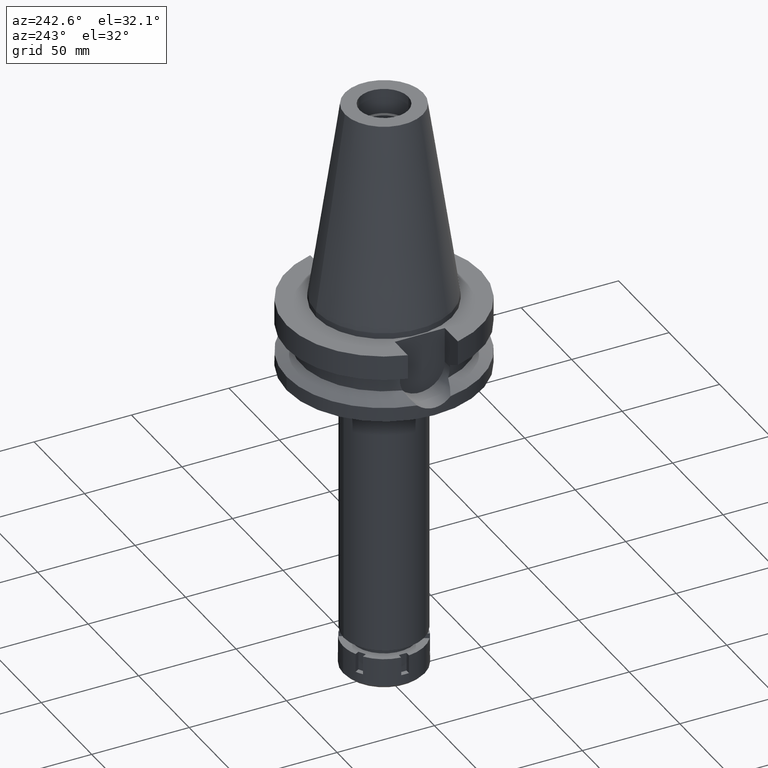
[diagram: clean part render]
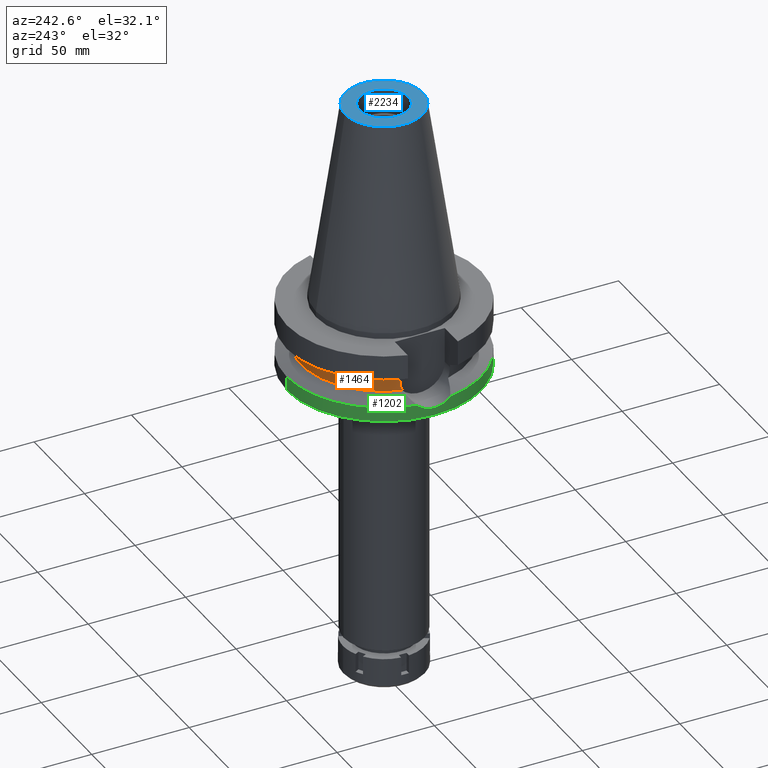
[diagram: same view with three faces highlighted in distinct colors, each labeled with its STEP entity id]
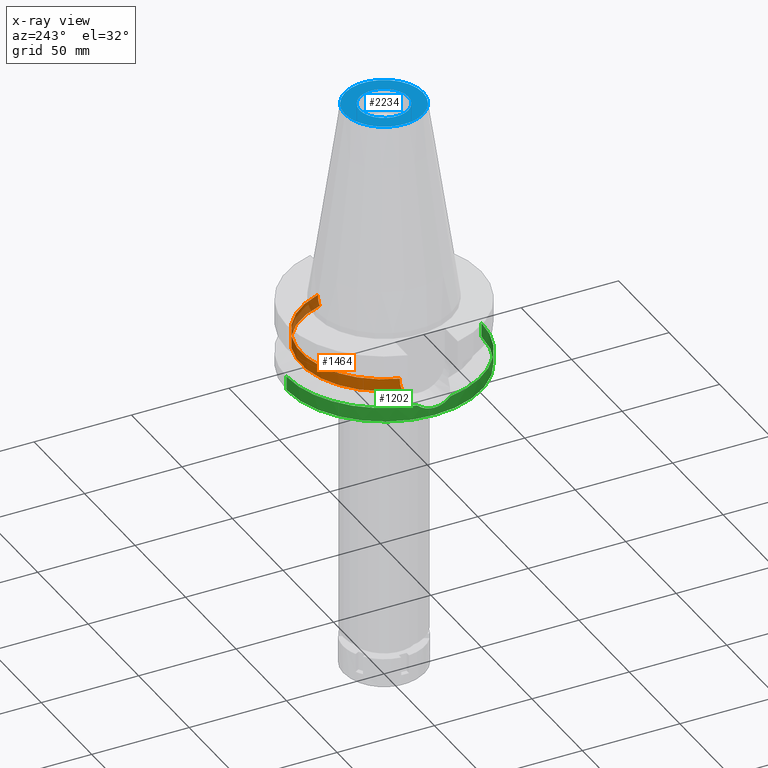
[diagram: x-ray of the same camera — body ghosted, the three highlighted faces saturated]
A machine part, auxiliary view with three faces highlighted in distinct colors.
The next image is the same camera in x-ray (body ghosted, the three faces saturated) — at least one of them is partly hidden behind the body in this view.
Their STEP definitions:

[orange] entity #1464 — the highlighted cylindrical surface (partial cylindrical patch) has radius 42.5 mm, axis along (0, 0, -1).
#124 = DIRECTION ( 'NONE',  ( 0.0000000000000000000, 0.0000000000000000000, -1.000000000000000000 ) ) ;
#156 = CARTESIAN_POINT ( 'NONE',  ( 40.51083188481999997, 12.84999999999999964, -21.14999999999999858 ) ) ;
#179 = VECTOR ( 'NONE', #3534, 999.9999999999998863 ) ;
#217 = CARTESIAN_POINT ( 'NONE',  ( 0.0000000000000000000, 0.0000000000000000000, -26.40718074535000426 ) ) ;
#326 = ORIENTED_EDGE ( 'NONE', *, *, #2248, .F. ) ;
#353 = VECTOR ( 'NONE', #3282, 1000.000000000000227 ) ;
#420 = CARTESIAN_POINT ( 'NONE',  ( 0.0000000000000000000, 2.651237855473999832E-14, 116.4899999999999949 ) ) ;
#495 = VERTEX_POINT ( 'NONE', #2665 ) ;
#549 = ORIENTED_EDGE ( 'NONE', *, *, #2020, .F. ) ;
#570 = CARTESIAN_POINT ( 'NONE',  ( 40.68244012169061108, 12.29668327074609557, -24.88704817341103848 ) ) ;
#621 = VERTEX_POINT ( 'NONE', #3516 ) ;
#655 = CARTESIAN_POINT ( 'NONE',  ( -40.85052569294000335, 11.72538061688000077, -26.40718074535000426 ) ) ;
#694 = CARTESIAN_POINT ( 'NONE',  ( -40.73816962964881583, 12.11682243018211302, -25.53412644635514539 ) ) ;
#812 = CARTESIAN_POINT ( 'NONE',  ( -40.58662774857591415, 12.60877356363315727, -23.62931612666511683 ) ) ;
#822 = CARTESIAN_POINT ( 'NONE',  ( 40.60092153270026927, 12.56264230965691020, -23.85246783902318413 ) ) ;
#900 = CARTESIAN_POINT ( 'NONE',  ( 40.51083188481999287, 12.84999999999999964, -22.03306420386933695 ) ) ;
#908 = ORIENTED_EDGE ( 'NONE', *, *, #3228, .F. ) ;
#1008 = VERTEX_POINT ( 'NONE', #1643 ) ;
#1043 = EDGE_CURVE ( 'NONE', #495, #1008, #3326, .T. ) ;
#1096 = CARTESIAN_POINT ( 'NONE',  ( -40.51818735908894809, 12.82722126770212157, -22.03688626290332309 ) ) ;
#1108 = CARTESIAN_POINT ( 'NONE',  ( -40.57496242610246640, 12.64633064307898636, -23.43373649620420451 ) ) ;
#1114 = CARTESIAN_POINT ( 'NONE',  ( 40.61156285954857026, 12.52823285237359130, -24.00849237159464167 ) ) ;
#1227 = CARTESIAN_POINT ( 'NONE',  ( -40.65436025735130698, 12.39001373507905868, -24.66363152923814894 ) ) ;
#1270 = CARTESIAN_POINT ( 'NONE',  ( -40.59544857123437822, 12.58031941217381799, -23.76894563305584640 ) ) ;
#1288 = CARTESIAN_POINT ( 'NONE',  ( -40.59737061725674323, 12.57411364518324604, -23.79856269427695992 ) ) ;
#1367 = CARTESIAN_POINT ( 'NONE',  ( -40.54944812473203086, 12.72805978472145938, -22.93052269426958034 ) ) ;
#1429 = CARTESIAN_POINT ( 'NONE',  ( 40.79434480643646310, 11.92111146967505952, -25.97063141241893547 ) ) ;
#1464 = ADVANCED_FACE ( 'NONE', ( #1866 ), #1568, .T. ) ;
#1503 = CARTESIAN_POINT ( 'NONE',  ( -40.51083297141000372, 12.84999657442999954, -19.99284554354000321 ) ) ;
#1535 = LINE ( 'NONE', #1503, #179 ) ;
#1568 = CYLINDRICAL_SURFACE ( 'NONE', #3499, 42.50000000000000000 ) ;
#1593 = VERTEX_POINT ( 'NONE', #1936 ) ;
#1643 = CARTESIAN_POINT ( 'NONE',  ( -40.85052569294000335, 11.72538061688000077, -26.40718074535000426 ) ) ;
#1692 = CARTESIAN_POINT ( 'NONE',  ( 40.66327078203668322, 12.35978912949376252, -24.67232732615307000 ) ) ;
#1708 = CARTESIAN_POINT ( 'NONE',  ( 40.60613069944914599, 12.54580339937320943, -23.92957563982541913 ) ) ;
#1723 = CARTESIAN_POINT ( 'NONE',  ( 40.51083188481999997, 12.84999999999999964, -21.14999999999999858 ) ) ;
#1743 = CARTESIAN_POINT ( 'NONE',  ( 40.60256501628037284, 12.55733133482484476, -23.87702281264044402 ) ) ;
#1866 = FACE_OUTER_BOUND ( 'NONE', #2573, .T. ) ;
#1886 = DIRECTION ( 'NONE',  ( 0.0000000000000000000, 1.000000000000000000, 0.0000000000000000000 ) ) ;
#1936 = CARTESIAN_POINT ( 'NONE',  ( -40.51083188481999997, 12.84999999999999964, -21.14999999999999858 ) ) ;
#1951 = ORIENTED_EDGE ( 'NONE', *, *, #2281, .F. ) ;
#1953 = CARTESIAN_POINT ( 'NONE',  ( -40.59188576338534915, 12.59181613885846929, -23.71309950380453202 ) ) ;
#2008 = CARTESIAN_POINT ( 'NONE',  ( 40.62482334720413490, 12.48526811858512353, -24.19322874753378727 ) ) ;
#2020 = EDGE_CURVE ( 'NONE', #495, #3577, #3109, .T. ) ;
#2039 = LINE ( 'NONE', #156, #353 ) ;
#2139 = DIRECTION ( 'NONE',  ( 0.0000000000000000000, 0.0000000000000000000, 1.000000000000000000 ) ) ;
#2248 = EDGE_CURVE ( 'NONE', #2477, #1593, #1535, .T. ) ;
#2275 = CARTESIAN_POINT ( 'NONE',  ( 40.54024891269926911, 12.75863239535543059, -22.93144942354764737 ) ) ;
#2281 = EDGE_CURVE ( 'NONE', #3577, #621, #2039, .T. ) ;
#2369 = AXIS2_PLACEMENT_3D ( 'NONE', #217, #2139, #1886 ) ;
#2390 = DIRECTION ( 'NONE',  ( -0.9531960443486575674, 0.3023529411764863672, 0.0000000000000000000 ) ) ;
#2473 = DIRECTION ( 'NONE',  ( 0.0000000000000000000, 0.0000000000000000000, -1.000000000000000000 ) ) ;
#2477 = VERTEX_POINT ( 'NONE', #2774 ) ;
#2496 = CARTESIAN_POINT ( 'NONE',  ( -40.56599794183718188, 12.67508828619823724, -23.26599945041199646 ) ) ;
#2573 = EDGE_LOOP ( 'NONE', ( #326, #3412, #1951, #549, #3525, #908 ) ) ;
#2609 = CARTESIAN_POINT ( 'NONE',  ( -40.54025378189581374, 12.75731467218758297, -22.70686882179157351 ) ) ;
#2665 = CARTESIAN_POINT ( 'NONE',  ( 40.85052569294000335, 11.72538061688000077, -26.40718074535000426 ) ) ;
#2750 = CARTESIAN_POINT ( 'NONE',  ( 40.51083188481999997, 12.84999999999999964, -21.14999999999999858 ) ) ;
#2774 = CARTESIAN_POINT ( 'NONE',  ( -40.51083188481999997, 12.84999999999999964, -19.99281925464999787 ) ) ;
#2836 = CARTESIAN_POINT ( 'NONE',  ( 40.85052569294000335, 11.72538061688000077, -26.40718074535000426 ) ) ;
#2840 = B_SPLINE_CURVE_WITH_KNOTS ( 'NONE', 3,
 ( #3629, #3367, #1096, #2609, #1367, #2496, #1108, #812, #1953, #1270, #1288, #1227, #694, #655 ),
 .UNSPECIFIED., .F., .F.,
 ( 4, 2, 2, 1, 1, 2, 2, 4 ),
 ( 0.0000000000000000000, 0.2500000000000047184, 0.3750000000000061617, 0.4375000000000069389, 0.4687500000000071054, 0.4843750000000073275, 0.5000000000000074385, 1.000000000000000000 ),
 .UNSPECIFIED. ) ;
#2841 = AXIS2_PLACEMENT_3D ( 'NONE', #2953, #124, #2390 ) ;
#2953 = CARTESIAN_POINT ( 'NONE',  ( 0.0000000000000000000, 1.006319759053999930E-14, -19.99281925464999787 ) ) ;
#3088 = CIRCLE ( 'NONE', #2841, 42.50000000000002132 ) ;
#3109 = B_SPLINE_CURVE_WITH_KNOTS ( 'NONE', 3,
 ( #2836, #1429, #3116, #570, #1692, #3691, #2008, #1114, #1708, #1743, #822, #2275, #900, #1723 ),
 .UNSPECIFIED., .F., .F.,
 ( 4, 2, 2, 1, 1, 2, 2, 4 ),
 ( 0.0000000000000000000, 0.2500000000000013323, 0.3750000000000030531, 0.4375000000000029976, 0.4687500000000029421, 0.4843750000000029421, 0.5000000000000028866, 1.000000000000000000 ),
 .UNSPECIFIED. ) ;
#3116 = CARTESIAN_POINT ( 'NONE',  ( 40.74530080281117961, 12.08736009434965553, -25.53452049776151611 ) ) ;
#3228 = EDGE_CURVE ( 'NONE', #1593, #1008, #2840, .T. ) ;
#3282 = DIRECTION ( 'NONE',  ( 9.395523002366738675E-07, -2.962029390682913821E-06, 0.9999999999951717511 ) ) ;
#3294 = DIRECTION ( 'NONE',  ( 0.0000000000000000000, -1.000000000000000000, 0.0000000000000000000 ) ) ;
#3326 = CIRCLE ( 'NONE', #2369, 42.50000000000000000 ) ;
#3356 = EDGE_CURVE ( 'NONE', #2477, #621, #3088, .T. ) ;
#3367 = CARTESIAN_POINT ( 'NONE',  ( -40.51083188481999997, 12.85000000000001563, -21.59155125953240528 ) ) ;
#3412 = ORIENTED_EDGE ( 'NONE', *, *, #3356, .T. ) ;
#3499 = AXIS2_PLACEMENT_3D ( 'NONE', #420, #2473, #3294 ) ;
#3516 = CARTESIAN_POINT ( 'NONE',  ( 40.51083297203000200, 12.84999657246999938, -19.99284555851999912 ) ) ;
#3525 = ORIENTED_EDGE ( 'NONE', *, *, #1043, .T. ) ;
#3534 = DIRECTION ( 'NONE',  ( 9.390170942255792672E-07, 2.960342106127936188E-06, -0.9999999999951774132 ) ) ;
#3577 = VERTEX_POINT ( 'NONE', #2750 ) ;
#3629 = CARTESIAN_POINT ( 'NONE',  ( -40.51083188481999997, 12.84999999999999964, -21.14999999999999858 ) ) ;
#3691 = CARTESIAN_POINT ( 'NONE',  ( 40.63719310363511283, 12.44501386261014453, -24.35254574346263823 ) ) ;

[blue] entity #2234 — the highlighted planar face has unit normal (0, 0, -1).
#25 = DIRECTION ( 'NONE',  ( 0.0000000000000000000, 0.0000000000000000000, -1.000000000000000000 ) ) ;
#115 = ORIENTED_EDGE ( 'NONE', *, *, #564, .F. ) ;
#125 = EDGE_CURVE ( 'NONE', #1976, #2641, #234, .T. ) ;
#234 = CIRCLE ( 'NONE', #2312, 20.07942971896000017 ) ;
#283 = AXIS2_PLACEMENT_3D ( 'NONE', #2461, #3335, #3251 ) ;
#393 = CARTESIAN_POINT ( 'NONE',  ( 0.0000000000000000000, -12.50000000000000000, 101.7999999999999972 ) ) ;
#564 = EDGE_CURVE ( 'NONE', #2641, #1976, #1144, .T. ) ;
#647 = VERTEX_POINT ( 'NONE', #1384 ) ;
#802 = CARTESIAN_POINT ( 'NONE',  ( 0.0000000000000000000, 20.07942971896000017, 101.7999999999999972 ) ) ;
#938 = CARTESIAN_POINT ( 'NONE',  ( 0.0000000000000000000, 1.847992019912999597E-14, 101.7999999999999972 ) ) ;
#952 = DIRECTION ( 'NONE',  ( 0.0000000000000000000, -1.000000000000000000, 0.0000000000000000000 ) ) ;
#1086 = AXIS2_PLACEMENT_3D ( 'NONE', #3022, #3544, #2111 ) ;
#1097 = EDGE_CURVE ( 'NONE', #647, #3368, #2010, .T. ) ;
#1144 = CIRCLE ( 'NONE', #2562, 20.07942971896000017 ) ;
#1384 = CARTESIAN_POINT ( 'NONE',  ( 0.0000000000000000000, 12.50000000000000000, 101.7999999999999972 ) ) ;
#1510 = EDGE_CURVE ( 'NONE', #3368, #647, #1729, .T. ) ;
#1660 = ORIENTED_EDGE ( 'NONE', *, *, #1510, .F. ) ;
#1729 = CIRCLE ( 'NONE', #1086, 12.50000000000000000 ) ;
#1794 = AXIS2_PLACEMENT_3D ( 'NONE', #2100, #2054, #952 ) ;
#1816 = DIRECTION ( 'NONE',  ( 0.0000000000000000000, 1.000000000000000000, 0.0000000000000000000 ) ) ;
#1976 = VERTEX_POINT ( 'NONE', #3563 ) ;
#2010 = CIRCLE ( 'NONE', #283, 12.50000000000000000 ) ;
#2054 = DIRECTION ( 'NONE',  ( 0.0000000000000000000, 0.0000000000000000000, -1.000000000000000000 ) ) ;
#2100 = CARTESIAN_POINT ( 'NONE',  ( 0.0000000000000000000, 2.471337240678999545E-14, 101.7999999999999972 ) ) ;
#2111 = DIRECTION ( 'NONE',  ( 0.0000000000000000000, -1.000000000000000000, 0.0000000000000000000 ) ) ;
#2161 = EDGE_LOOP ( 'NONE', ( #3536, #1660 ) ) ;
#2234 = ADVANCED_FACE ( 'NONE', ( #2358, #2382 ), #3495, .F. ) ;
#2312 = AXIS2_PLACEMENT_3D ( 'NONE', #938, #25, #2646 ) ;
#2358 = FACE_OUTER_BOUND ( 'NONE', #2556, .T. ) ;
#2382 = FACE_BOUND ( 'NONE', #2161, .T. ) ;
#2461 = CARTESIAN_POINT ( 'NONE',  ( 0.0000000000000000000, 2.651237855473999832E-14, 101.7999999999999972 ) ) ;
#2556 = EDGE_LOOP ( 'NONE', ( #115, #3236 ) ) ;
#2562 = AXIS2_PLACEMENT_3D ( 'NONE', #2952, #2707, #1816 ) ;
#2641 = VERTEX_POINT ( 'NONE', #802 ) ;
#2646 = DIRECTION ( 'NONE',  ( 0.0000000000000000000, -1.000000000000000000, 0.0000000000000000000 ) ) ;
#2707 = DIRECTION ( 'NONE',  ( 0.0000000000000000000, 0.0000000000000000000, -1.000000000000000000 ) ) ;
#2952 = CARTESIAN_POINT ( 'NONE',  ( 0.0000000000000000000, 1.847992019912999597E-14, 101.7999999999999972 ) ) ;
#3022 = CARTESIAN_POINT ( 'NONE',  ( 0.0000000000000000000, 2.651237855473999832E-14, 101.7999999999999972 ) ) ;
#3236 = ORIENTED_EDGE ( 'NONE', *, *, #125, .F. ) ;
#3251 = DIRECTION ( 'NONE',  ( 0.0000000000000000000, 1.000000000000000000, 0.0000000000000000000 ) ) ;
#3335 = DIRECTION ( 'NONE',  ( 0.0000000000000000000, 0.0000000000000000000, 1.000000000000000000 ) ) ;
#3368 = VERTEX_POINT ( 'NONE', #393 ) ;
#3495 = PLANE ( 'NONE',  #1794 ) ;
#3536 = ORIENTED_EDGE ( 'NONE', *, *, #1097, .F. ) ;
#3544 = DIRECTION ( 'NONE',  ( 0.0000000000000000000, 0.0000000000000000000, 1.000000000000000000 ) ) ;
#3563 = CARTESIAN_POINT ( 'NONE',  ( 0.0000000000000000000, -20.07942971896000017, 101.7999999999999972 ) ) ;

[green] entity #1202 — the highlighted cylindrical surface (partial cylindrical patch) has radius 50 mm, axis along (0, 0, -1).
#21 = ORIENTED_EDGE ( 'NONE', *, *, #2221, .T. ) ;
#42 = DIRECTION ( 'NONE',  ( 0.0000000000000000000, 0.0000000000000000000, -1.000000000000000000 ) ) ;
#87 = EDGE_LOOP ( 'NONE', ( #2202, #21, #2739, #2183, #1456, #2354 ) ) ;
#95 = CARTESIAN_POINT ( 'NONE',  ( -49.47566580412834725, 7.222569676286056506, -31.77964915400913881 ) ) ;
#142 = CARTESIAN_POINT ( 'NONE',  ( -49.84644755714927555, -3.921701316595554765, -33.38981237008672309 ) ) ;
#165 = CARTESIAN_POINT ( 'NONE',  ( -49.99978007004854419, 0.1277363651292394153, -33.99951339606808887 ) ) ;
#192 = CARTESIAN_POINT ( 'NONE',  ( -49.79360975992647553, -4.538122689800699661, -33.17198411705533090 ) ) ;
#226 = CARTESIAN_POINT ( 'NONE',  ( -49.56395370295711444, -6.589055712391462372, -32.18213532685411593 ) ) ;
#240 = AXIS2_PLACEMENT_3D ( 'NONE', #3178, #42, #1756 ) ;
#303 = CARTESIAN_POINT ( 'NONE',  ( -49.64898610876950613, 5.924049219961846191, -32.55967030391435202 ) ) ;
#306 = FACE_OUTER_BOUND ( 'NONE', #87, .T. ) ;
#356 = CARTESIAN_POINT ( 'NONE',  ( 0.0000000000000000000, 50.00000000000000000, -30.73730776426999967 ) ) ;
#368 = CARTESIAN_POINT ( 'NONE',  ( -49.26250064874000145, 8.556052234130000045, -30.73730776426999967 ) ) ;
#384 = DIRECTION ( 'NONE',  ( 0.0000000000000000000, 2.152361642122000014E-14, -1.000000000000000000 ) ) ;
#444 = CARTESIAN_POINT ( 'NONE',  ( -49.78714585122636294, 4.608515934789558344, -33.14520686596515731 ) ) ;
#471 = CARTESIAN_POINT ( 'NONE',  ( -49.79024291478474140, -4.574903425303972426, -33.15803416392318326 ) ) ;
#476 = VECTOR ( 'NONE', #384, 1000.000000000000000 ) ;
#488 = VERTEX_POINT ( 'NONE', #3521 ) ;
#489 = CARTESIAN_POINT ( 'NONE',  ( -49.75837799903966641, -4.920711292714374352, -33.02594009606804093 ) ) ;
#506 = CARTESIAN_POINT ( 'NONE',  ( -49.64367505671710035, -5.960659303902090755, -32.53565567123143154 ) ) ;
#510 = DIRECTION ( 'NONE',  ( 0.0000000000000000000, 0.0000000000000000000, -1.000000000000000000 ) ) ;
#524 = CARTESIAN_POINT ( 'NONE',  ( -49.55878331874021825, -6.627792136031090742, -32.15886750765722013 ) ) ;
#622 = CARTESIAN_POINT ( 'NONE',  ( 0.0000000000000000000, 50.00000000000000000, -30.73730776426999967 ) ) ;
#668 = CARTESIAN_POINT ( 'NONE',  ( -49.72680802972317338, 5.221633248586280196, -32.89276324358826287 ) ) ;
#728 = CARTESIAN_POINT ( 'NONE',  ( -49.75319208404522442, 4.961948302495471808, -33.00370953068234314 ) ) ;
#766 = CARTESIAN_POINT ( 'NONE',  ( -49.79683695212170846, -4.502663508584212160, -33.18534950409117812 ) ) ;
#805 = CARTESIAN_POINT ( 'NONE',  ( -49.66436399988585038, -5.785502173081689570, -32.62553262726319758 ) ) ;
#810 = VERTEX_POINT ( 'NONE', #3595 ) ;
#861 = DIRECTION ( 'NONE',  ( 0.0000000000000000000, -1.000000000000000000, 0.0000000000000000000 ) ) ;
#887 = VERTEX_POINT ( 'NONE', #1548 ) ;
#927 = DIRECTION ( 'NONE',  ( 0.0000000000000000000, 0.0000000000000000000, 1.000000000000000000 ) ) ;
#953 = CARTESIAN_POINT ( 'NONE',  ( -49.60527657794600742, 6.280734339048350989, -32.36827992160078793 ) ) ;
#1024 = CARTESIAN_POINT ( 'NONE',  ( -49.55655823010589245, -6.644396915698249195, -32.14884227876249412 ) ) ;
#1025 = VECTOR ( 'NONE', #3015, 1000.000000000000000 ) ;
#1044 = CARTESIAN_POINT ( 'NONE',  ( -49.57420851433771958, -6.511617493453977445, -32.22817501005160779 ) ) ;
#1061 = CARTESIAN_POINT ( 'NONE',  ( -49.79144986254233629, -4.561756691914538031, -33.16303606679792892 ) ) ;
#1083 = CARTESIAN_POINT ( 'NONE',  ( 0.0000000000000000000, -50.00000000000000000, -30.73730776426999967 ) ) ;
#1095 = DIRECTION ( 'NONE',  ( 0.0000000000000000000, -1.000000000000000000, 0.0000000000000000000 ) ) ;
#1101 = CARTESIAN_POINT ( 'NONE',  ( -49.99991418525429054, 0.01116271475904011441, -34.00001628486788974 ) ) ;
#1202 = ADVANCED_FACE ( 'NONE', ( #306 ), #3366, .T. ) ;
#1204 = AXIS2_PLACEMENT_3D ( 'NONE', #2636, #927, #1236 ) ;
#1208 = LINE ( 'NONE', #622, #476 ) ;
#1236 = DIRECTION ( 'NONE',  ( 0.0000000000000000000, 1.000000000000000000, 0.0000000000000000000 ) ) ;
#1237 = CARTESIAN_POINT ( 'NONE',  ( -49.54911688011213755, 6.699663358709522676, -32.11529720899933693 ) ) ;
#1282 = CARTESIAN_POINT ( 'NONE',  ( -49.37891072635320455, 7.861784141442475615, -31.32216870207415482 ) ) ;
#1325 = CARTESIAN_POINT ( 'NONE',  ( -49.99934626388451164, -0.7783924092420801966, -33.99780972340943919 ) ) ;
#1326 = CIRCLE ( 'NONE', #1204, 50.00000000000000000 ) ;
#1343 = LINE ( 'NONE', #1083, #1025 ) ;
#1378 = CARTESIAN_POINT ( 'NONE',  ( -49.38324903610464389, -7.860828859124546319, -31.35774967113219702 ) ) ;
#1391 = CARTESIAN_POINT ( 'NONE',  ( 0.0000000000000000000, -50.00000000000000000, -30.73730776426999967 ) ) ;
#1456 = ORIENTED_EDGE ( 'NONE', *, *, #1695, .T. ) ;
#1467 = CARTESIAN_POINT ( 'NONE',  ( 0.0000000000000000000, 50.00000000000000000, -38.00000000000000000 ) ) ;
#1536 = CARTESIAN_POINT ( 'NONE',  ( -49.55655204302928496, 6.644431293634283087, -32.14882155011449072 ) ) ;
#1548 = CARTESIAN_POINT ( 'NONE',  ( 0.0000000000000000000, -50.00000000000000000, -38.00000000000000000 ) ) ;
#1575 = CARTESIAN_POINT ( 'NONE',  ( -49.32372953367556079, 8.203519558850366877, -31.05192038108562258 ) ) ;
#1636 = CARTESIAN_POINT ( 'NONE',  ( -49.99918696134718488, 0.2913176030771943426, -33.99729381970415432 ) ) ;
#1640 = CARTESIAN_POINT ( 'NONE',  ( 0.0000000000000000000, 0.0000000000000000000, -30.73730776426999967 ) ) ;
#1695 = EDGE_CURVE ( 'NONE', #3151, #810, #2676, .T. ) ;
#1756 = DIRECTION ( 'NONE',  ( -0.9852500129747439050, 0.1711210446826074982, 0.0000000000000000000 ) ) ;
#1856 = CIRCLE ( 'NONE', #240, 50.00000000000000000 ) ;
#1871 = CARTESIAN_POINT ( 'NONE',  ( -49.78020860951708215, 4.683043310331449938, -33.11642240108568558 ) ) ;
#1876 = CARTESIAN_POINT ( 'NONE',  ( -49.97921345340199650, 1.472277931383667138, -33.92105547429478207 ) ) ;
#1931 = CARTESIAN_POINT ( 'NONE',  ( -49.80427849007743646, -4.419869523436141812, -33.21613890181311035 ) ) ;
#1943 = EDGE_CURVE ( 'NONE', #488, #810, #3676, .T. ) ;
#1944 = CARTESIAN_POINT ( 'NONE',  ( -49.99657010601527674, 0.6197521075796904588, -33.98745896368482278 ) ) ;
#1970 = EDGE_CURVE ( 'NONE', #3151, #887, #1343, .T. ) ;
#2148 = CARTESIAN_POINT ( 'NONE',  ( -49.79203021163985454, 4.555405786568073268, -33.16544452546231980 ) ) ;
#2154 = CARTESIAN_POINT ( 'NONE',  ( -49.86316841598083727, 3.774661687843875679, -33.45988861057551844 ) ) ;
#2171 = EDGE_CURVE ( 'NONE', #488, #3281, #1856, .T. ) ;
#2183 = ORIENTED_EDGE ( 'NONE', *, *, #1970, .F. ) ;
#2187 = CARTESIAN_POINT ( 'NONE',  ( -49.55415699598680845, -6.662282079197838769, -32.13801721396592370 ) ) ;
#2191 = EDGE_CURVE ( 'NONE', #3097, #887, #1326, .T. ) ;
#2202 = ORIENTED_EDGE ( 'NONE', *, *, #2171, .T. ) ;
#2208 = CARTESIAN_POINT ( 'NONE',  ( -49.99991299091728791, -0.01387171431984518706, -34.00001339701645975 ) ) ;
#2221 = EDGE_CURVE ( 'NONE', #3281, #3097, #1208, .T. ) ;
#2227 = CARTESIAN_POINT ( 'NONE',  ( -49.55507279108647367, -6.655467508179840230, -32.14214692833006382 ) ) ;
#2340 = CARTESIAN_POINT ( 'NONE',  ( -49.50798016024979376, 6.996952391510430580, -31.92837050288540368 ) ) ;
#2354 = ORIENTED_EDGE ( 'NONE', *, *, #1943, .F. ) ;
#2454 = CARTESIAN_POINT ( 'NONE',  ( -49.98151994496689099, -1.536776126238692530, -33.93130987525846365 ) ) ;
#2469 = CARTESIAN_POINT ( 'NONE',  ( -49.90699458491120311, -3.063359792405750071, -33.63580153744437951 ) ) ;
#2483 = CARTESIAN_POINT ( 'NONE',  ( -49.48027691391539662, -7.211450077568779093, -31.80475317887415798 ) ) ;
#2506 = CARTESIAN_POINT ( 'NONE',  ( -49.26250064874000145, -8.556052234130000045, -30.73730776426999967 ) ) ;
#2613 = AXIS2_PLACEMENT_3D ( 'NONE', #1640, #510, #861 ) ;
#2636 = CARTESIAN_POINT ( 'NONE',  ( 0.0000000000000000000, 2.651237855473999832E-14, -38.00000000000000000 ) ) ;
#2676 = CIRCLE ( 'NONE', #2613, 50.00000000000000000 ) ;
#2700 = CARTESIAN_POINT ( 'NONE',  ( -49.45261097698290342, 7.378715928777639377, -31.67219524338559822 ) ) ;
#2725 = CARTESIAN_POINT ( 'NONE',  ( -49.72328725716208453, -5.263682545456594752, -32.87883983849709324 ) ) ;
#2739 = ORIENTED_EDGE ( 'NONE', *, *, #2191, .T. ) ;
#2749 = CARTESIAN_POINT ( 'NONE',  ( -49.91493021333103286, 3.003896466695834100, -33.66817669891921128 ) ) ;
#2762 = CARTESIAN_POINT ( 'NONE',  ( -49.86770969757604632, -3.635792842379909739, -33.47650553562700537 ) ) ;
#2777 = CARTESIAN_POINT ( 'NONE',  ( -49.96641267293669131, 1.854385219548399188, -33.87144511914894451 ) ) ;
#2793 = AXIS2_PLACEMENT_3D ( 'NONE', #3403, #3135, #1095 ) ;
#2863 = CARTESIAN_POINT ( 'NONE',  ( -49.55497938657792645, 6.656146421900556831, -32.14173509731739387 ) ) ;
#2946 = CARTESIAN_POINT ( 'NONE',  ( -49.52357036716130523, 6.886290592251893550, -31.99961560334141453 ) ) ;
#3011 = CARTESIAN_POINT ( 'NONE',  ( -49.79008146598524576, 4.576641034203925429, -33.15737214667728239 ) ) ;
#3015 = DIRECTION ( 'NONE',  ( 0.0000000000000000000, -2.250196262218999978E-14, -1.000000000000000000 ) ) ;
#3071 = CARTESIAN_POINT ( 'NONE',  ( -49.79288518047122380, 4.546060314979706973, -33.16898483582425428 ) ) ;
#3085 = CARTESIAN_POINT ( 'NONE',  ( -49.92886531844350628, -2.680927594085602994, -33.72320138161557423 ) ) ;
#3097 = VERTEX_POINT ( 'NONE', #1467 ) ;
#3135 = DIRECTION ( 'NONE',  ( 0.0000000000000000000, 0.0000000000000000000, -1.000000000000000000 ) ) ;
#3151 = VERTEX_POINT ( 'NONE', #1391 ) ;
#3178 = CARTESIAN_POINT ( 'NONE',  ( 0.0000000000000000000, 0.0000000000000000000, -30.73730776426999967 ) ) ;
#3220 = CARTESIAN_POINT ( 'NONE',  ( -49.70815231120920430, 5.396331756057992202, -32.81362775810764276 ) ) ;
#3281 = VERTEX_POINT ( 'NONE', #356 ) ;
#3283 = CARTESIAN_POINT ( 'NONE',  ( -49.76598423034402430, 4.832695555829157108, -33.05724367534212149 ) ) ;
#3288 = CARTESIAN_POINT ( 'NONE',  ( -49.61106985584903839, -6.224615897500662243, -32.39218330791851486 ) ) ;
#3323 = CARTESIAN_POINT ( 'NONE',  ( -49.99187456499498694, 0.9032426761133953708, -33.96962919614824017 ) ) ;
#3366 = CYLINDRICAL_SURFACE ( 'NONE', #2793, 50.00000000000000000 ) ;
#3403 = CARTESIAN_POINT ( 'NONE',  ( 0.0000000000000000000, 2.651237855473999832E-14, 116.4899999999999949 ) ) ;
#3475 = CARTESIAN_POINT ( 'NONE',  ( -49.54076674238040567, 6.761186822826256382, -32.07757331960704761 ) ) ;
#3496 = CARTESIAN_POINT ( 'NONE',  ( -49.55614273364938072, 6.647481783958479440, -32.14697738341399713 ) ) ;
#3521 = CARTESIAN_POINT ( 'NONE',  ( -49.26250064874000145, 8.556052234130000045, -30.73730776426999967 ) ) ;
#3557 = CARTESIAN_POINT ( 'NONE',  ( -49.55322993650862884, 6.669162168877617702, -32.13384980553950498 ) ) ;
#3586 = CARTESIAN_POINT ( 'NONE',  ( -49.59437430888625897, -6.356898427903768578, -32.31828320127225851 ) ) ;
#3595 = CARTESIAN_POINT ( 'NONE',  ( -49.26250064874000145, -8.556052234130000045, -30.73730776426999967 ) ) ;
#3601 = CARTESIAN_POINT ( 'NONE',  ( -49.81880725732280979, -4.254068733330427676, -33.27613423610508647 ) ) ;
#3617 = CARTESIAN_POINT ( 'NONE',  ( -49.99988097685672983, 0.05777274214644423367, -33.99989126171253417 ) ) ;
#3676 = B_SPLINE_CURVE_WITH_KNOTS ( 'NONE', 3,
 ( #368, #1575, #1282, #2700, #95, #2340, #2946, #3475, #1237, #3557, #2863, #3496, #1536, #953, #303, #3220, #668, #728, #3283, #1871, #444, #3011, #2148, #3071, #2154, #2749, #2777, #1876, #3323, #1944, #1636, #165, #3617, #1101, #2208, #1325, #2454, #3085, #2469, #2762, #142, #3601, #1931, #766, #192, #1061, #471, #489, #2725, #805, #506, #3288, #3586, #1044, #226, #524, #1024, #2227, #2187, #2483, #1378, #2506 ),
 .UNSPECIFIED., .F., .F.,
 ( 4, 2, 2, 1, 1, 1, 1, 2, 2, 2, 2, 1, 1, 1, 2, 2, 2, 2, 1, 1, 1, 2, 2, 2, 2, 1, 1, 1, 1, 2, 2, 2, 2, 1, 1, 1, 1, 2, 2, 4 ),
 ( 0.0000000000000000000, 0.06249999999999009126, 0.09374999999998481770, 0.1093749999999819311, 0.1171874999999807376, 0.1210937499999802380, 0.1230468749999803074, 0.1240234374999802797, 0.1249999999999802380, 0.1874999999999806821, 0.2187499999999811262, 0.2343749999999811817, 0.2421874999999812372, 0.2460937499999812372, 0.2480468749999812372, 0.2499999999999812372, 0.3749999999999888423, 0.4374999999999926725, 0.4687499999999946709, 0.4843749999999957256, 0.4921874999999961697, 0.4960937499999964473, 0.4999999999999966693, 0.6250000000000045519, 0.6875000000000085487, 0.7187500000000105471, 0.7343750000000115463, 0.7421875000000123235, 0.7460937500000126565, 0.7480468750000126565, 0.7500000000000126565, 0.8125000000000095479, 0.8437500000000079936, 0.8593750000000073275, 0.8671875000000068834, 0.8710937500000063283, 0.8730468750000059952, 0.8740234375000061062, 0.8750000000000061062, 1.000000000000000000 ),
 .UNSPECIFIED. ) ;